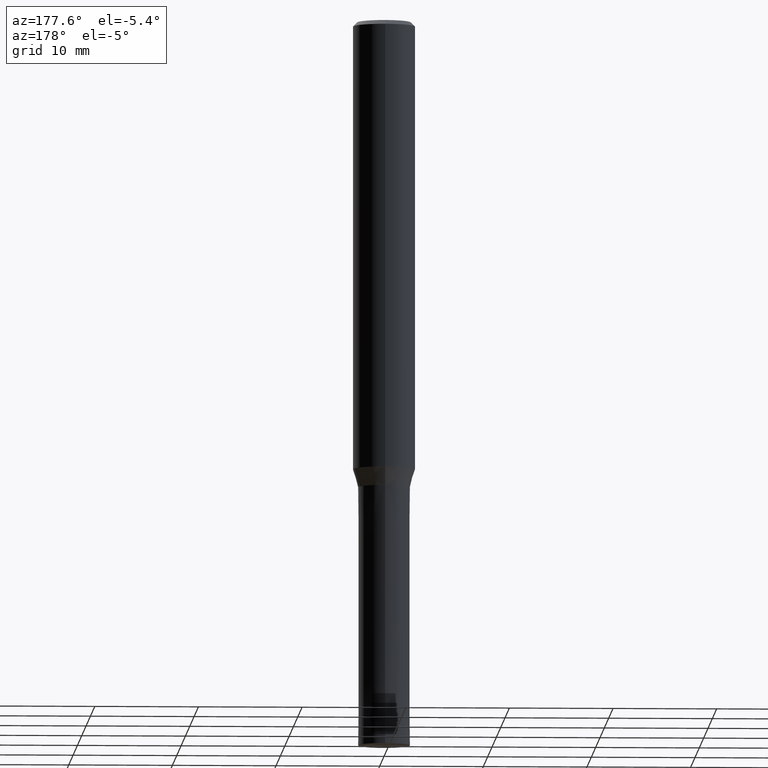
[diagram: clean part render]
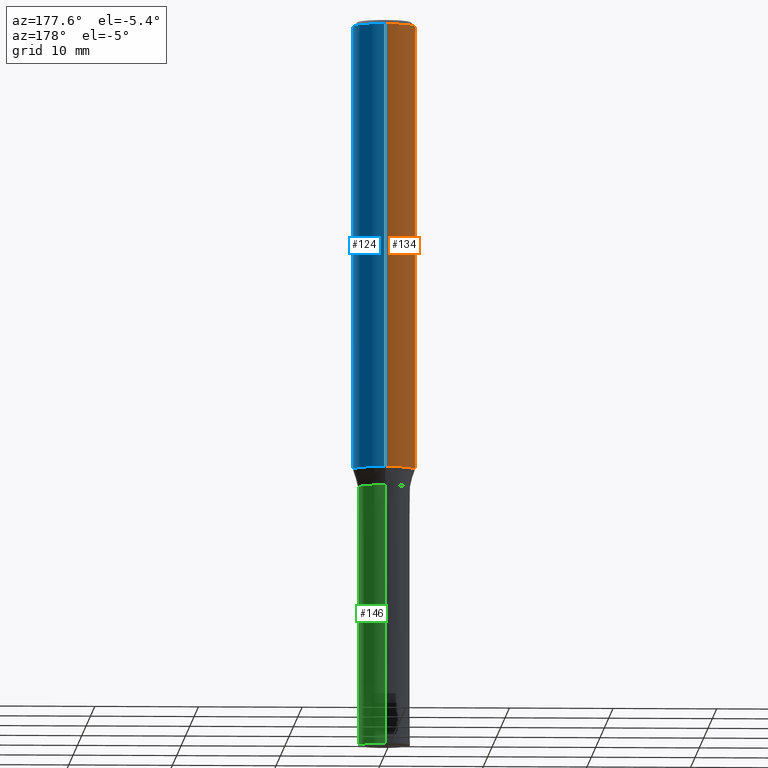
[diagram: same view with three faces highlighted in distinct colors, each labeled with its STEP entity id]
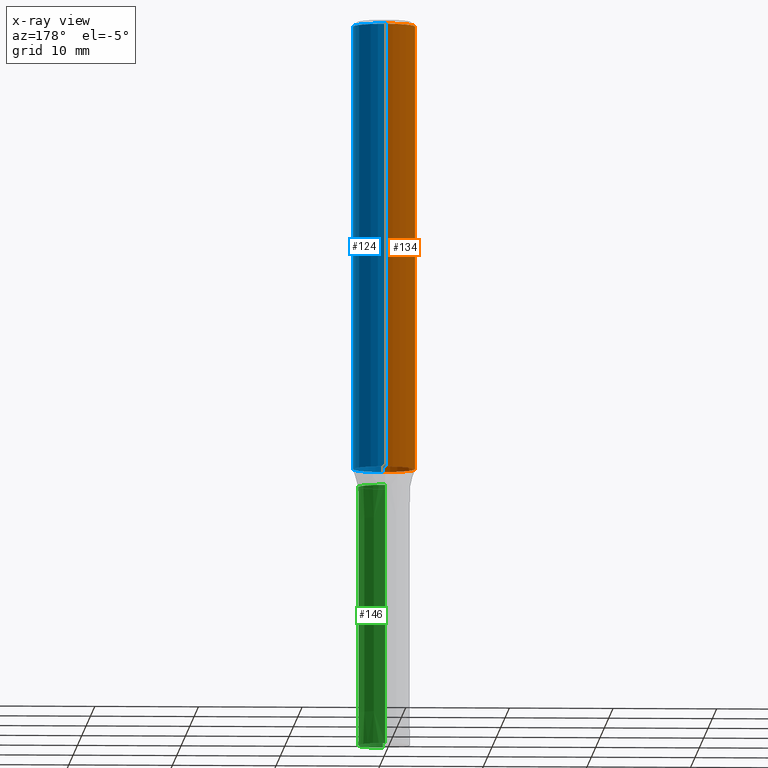
[diagram: x-ray of the same camera — body ghosted, the three highlighted faces saturated]
A machine part, auxiliary view with three faces highlighted in distinct colors.
The next image is the same camera in x-ray (body ghosted, the three faces saturated) — at least one of them is partly hidden behind the body in this view.
Their STEP definitions:

[orange] entity #134 — the highlighted cylindrical surface (edge-blend (fillet) strip) has radius 3 mm, axis along (-0, -0, 1).
#84=EDGE_CURVE('',#102,#178,#205,.T.);
#96=EDGE_CURVE('',#118,#102,#218,.T.);
#98=EDGE_CURVE('',#168,#178,#220,.T.);
#102=VERTEX_POINT('',#224);
#118=VERTEX_POINT('',#240);
#134=ADVANCED_FACE('',(#259),#260,.T.);
#168=VERTEX_POINT('',#302);
#178=VERTEX_POINT('',#312);
#180=EDGE_CURVE('',#168,#118,#314,.T.);
#205=LINE('',#333,#334);
#218=CIRCLE('',#351,3.0);
#220=CIRCLE('',#354,3.0);
#224=CARTESIAN_POINT('',(0.0,3.0,-0.399999999999999));
#240=CARTESIAN_POINT('',(3.67381906146713E-016,-3.0,-0.399999999999999));
#259=FACE_OUTER_BOUND('',#402,.T.);
#260=CYLINDRICAL_SURFACE('',#403,3.0);
#302=CARTESIAN_POINT('',(3.67381906146713E-016,-3.0,-43.256));
#312=CARTESIAN_POINT('',(0.0,3.0,-43.256));
#314=LINE('',#466,#467);
#333=CARTESIAN_POINT('',(-3.67381906146713E-016,3.0,-21.828));
#334=VECTOR('',#476,1.0);
#351=AXIS2_PLACEMENT_3D('',#489,#490,#491);
#354=AXIS2_PLACEMENT_3D('',#492,#493,#494);
#402=EDGE_LOOP('',(#534,#535,#536,#537));
#403=AXIS2_PLACEMENT_3D('',#538,#539,#540);
#466=CARTESIAN_POINT('',(3.67381906146713E-016,-3.0,-21.828));
#467=VECTOR('',#614,1.0);
#476=DIRECTION('',(0.0,0.0,-1.0));
#489=CARTESIAN_POINT('',(0.0,0.0,-0.399999999999999));
#490=DIRECTION('',(0.0,0.0,-1.0));
#491=DIRECTION('',(0.0,1.0,0.0));
#492=CARTESIAN_POINT('',(0.0,0.0,-43.256));
#493=DIRECTION('',(0.0,0.0,-1.0));
#494=DIRECTION('',(0.0,1.0,0.0));
#534=ORIENTED_EDGE('',*,*,#84,.T.);
#535=ORIENTED_EDGE('',*,*,#98,.F.);
#536=ORIENTED_EDGE('',*,*,#180,.T.);
#537=ORIENTED_EDGE('',*,*,#96,.T.);
#538=CARTESIAN_POINT('',(0.0,0.0,-21.828));
#539=DIRECTION('',(-0.0,-0.0,1.0));
#540=DIRECTION('',(0.0,1.0,0.0));
#614=DIRECTION('',(-0.0,-0.0,1.0));

[blue] entity #124 — the highlighted cylindrical surface (edge-blend (fillet) strip) has radius 3 mm, axis along (-0, -0, 1).
#84=EDGE_CURVE('',#102,#178,#205,.T.);
#102=VERTEX_POINT('',#224);
#118=VERTEX_POINT('',#240);
#124=ADVANCED_FACE('',(#247),#248,.T.);
#148=EDGE_CURVE('',#178,#168,#277,.T.);
#150=EDGE_CURVE('',#102,#118,#279,.T.);
#168=VERTEX_POINT('',#302);
#178=VERTEX_POINT('',#312);
#180=EDGE_CURVE('',#168,#118,#314,.T.);
#205=LINE('',#333,#334);
#224=CARTESIAN_POINT('',(0.0,3.0,-0.399999999999999));
#240=CARTESIAN_POINT('',(3.67381906146713E-016,-3.0,-0.399999999999999));
#247=FACE_OUTER_BOUND('',#387,.T.);
#248=CYLINDRICAL_SURFACE('',#388,3.0);
#277=CIRCLE('',#423,3.0);
#279=CIRCLE('',#426,3.0);
#302=CARTESIAN_POINT('',(3.67381906146713E-016,-3.0,-43.256));
#312=CARTESIAN_POINT('',(0.0,3.0,-43.256));
#314=LINE('',#466,#467);
#333=CARTESIAN_POINT('',(-3.67381906146713E-016,3.0,-21.828));
#334=VECTOR('',#476,1.0);
#387=EDGE_LOOP('',(#516,#517,#518,#519));
#388=AXIS2_PLACEMENT_3D('',#520,#521,#522);
#423=AXIS2_PLACEMENT_3D('',#569,#570,#571);
#426=AXIS2_PLACEMENT_3D('',#572,#573,#574);
#466=CARTESIAN_POINT('',(3.67381906146713E-016,-3.0,-21.828));
#467=VECTOR('',#614,1.0);
#476=DIRECTION('',(0.0,0.0,-1.0));
#516=ORIENTED_EDGE('',*,*,#84,.F.);
#517=ORIENTED_EDGE('',*,*,#150,.T.);
#518=ORIENTED_EDGE('',*,*,#180,.F.);
#519=ORIENTED_EDGE('',*,*,#148,.F.);
#520=CARTESIAN_POINT('',(0.0,0.0,-21.828));
#521=DIRECTION('',(-0.0,-0.0,1.0));
#522=DIRECTION('',(0.0,1.0,0.0));
#569=CARTESIAN_POINT('',(0.0,0.0,-43.256));
#570=DIRECTION('',(0.0,0.0,-1.0));
#571=DIRECTION('',(0.0,1.0,0.0));
#572=CARTESIAN_POINT('',(0.0,0.0,-0.399999999999999));
#573=DIRECTION('',(0.0,0.0,-1.0));
#574=DIRECTION('',(0.0,1.0,0.0));
#614=DIRECTION('',(-0.0,-0.0,1.0));

[green] entity #146 — the highlighted conical surface has half-angle 0 deg.
#94=VERTEX_POINT('',#216);
#100=VERTEX_POINT('',#222);
#112=EDGE_CURVE('',#100,#126,#234,.T.);
#126=VERTEX_POINT('',#250);
#128=EDGE_CURVE('',#94,#126,#252,.T.);
#146=ADVANCED_FACE('',(#274),#275,.T.);
#156=EDGE_CURVE('',#172,#100,#286,.T.);
#172=VERTEX_POINT('',#306);
#184=EDGE_CURVE('',#94,#172,#319,.T.);
#216=CARTESIAN_POINT('',(0.0,2.4999,-45.0));
#222=CARTESIAN_POINT('',(3.06151588455594E-016,-2.5,-70.0));
#234=LINE('',#372,#373);
#250=CARTESIAN_POINT('',(3.06139342392056E-016,-2.4999,-45.0));
#252=CIRCLE('',#393,2.4999);
#274=FACE_OUTER_BOUND('',#419,.T.);
#275=CONICAL_SURFACE('',#420,2.49995,3.99999999998711E-006);
#286=CIRCLE('',#436,2.5);
#306=CARTESIAN_POINT('',(0.0,2.5,-70.0));
#319=LINE('',#473,#474);
#372=CARTESIAN_POINT('',(3.06145465423825E-016,-2.49995,-57.5));
#373=VECTOR('',#504,1.0);
#393=AXIS2_PLACEMENT_3D('',#523,#524,#525);
#419=EDGE_LOOP('',(#562,#563,#564,#565));
#420=AXIS2_PLACEMENT_3D('',#566,#567,#568);
#436=AXIS2_PLACEMENT_3D('',#582,#583,#584);
#473=CARTESIAN_POINT('',(-3.06145465423825E-016,2.49995,-57.5));
#474=VECTOR('',#623,1.0);
#504=DIRECTION('',(-4.89842541526066E-022,3.99999999997644E-006,0.999999999992));
#523=CARTESIAN_POINT('',(0.0,0.0,-45.0));
#524=DIRECTION('',(0.0,0.0,-1.0));
#525=DIRECTION('',(0.0,1.0,0.0));
#562=ORIENTED_EDGE('',*,*,#184,.F.);
#563=ORIENTED_EDGE('',*,*,#128,.T.);
#564=ORIENTED_EDGE('',*,*,#112,.F.);
#565=ORIENTED_EDGE('',*,*,#156,.F.);
#566=CARTESIAN_POINT('',(0.0,0.0,-57.5));
#567=DIRECTION('',(0.0,-0.0,-1.0));
#568=DIRECTION('',(0.0,1.0,0.0));
#582=CARTESIAN_POINT('',(0.0,0.0,-70.0));
#583=DIRECTION('',(0.0,0.0,-1.0));
#584=DIRECTION('',(0.0,1.0,0.0));
#623=DIRECTION('',(-4.89842541526066E-022,3.99999999997644E-006,-0.999999999992));